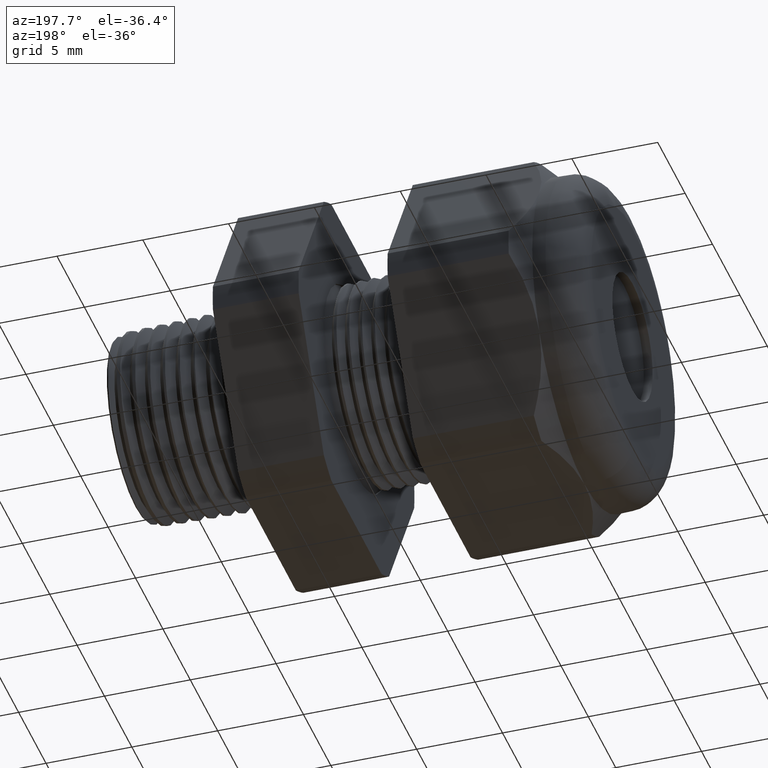
[diagram: clean part render]
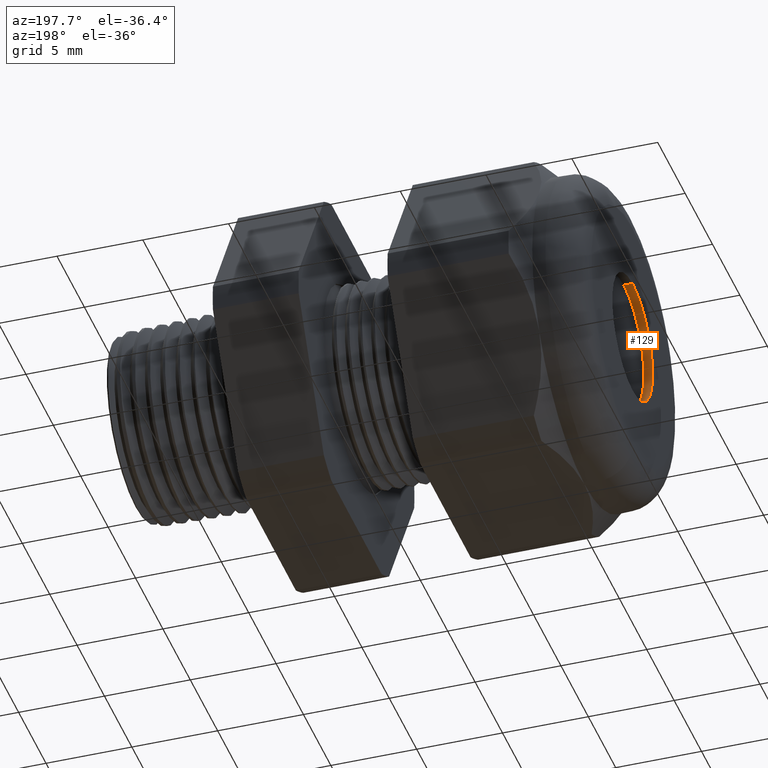
[diagram: same view with one face highlighted and labeled with its STEP entity id]
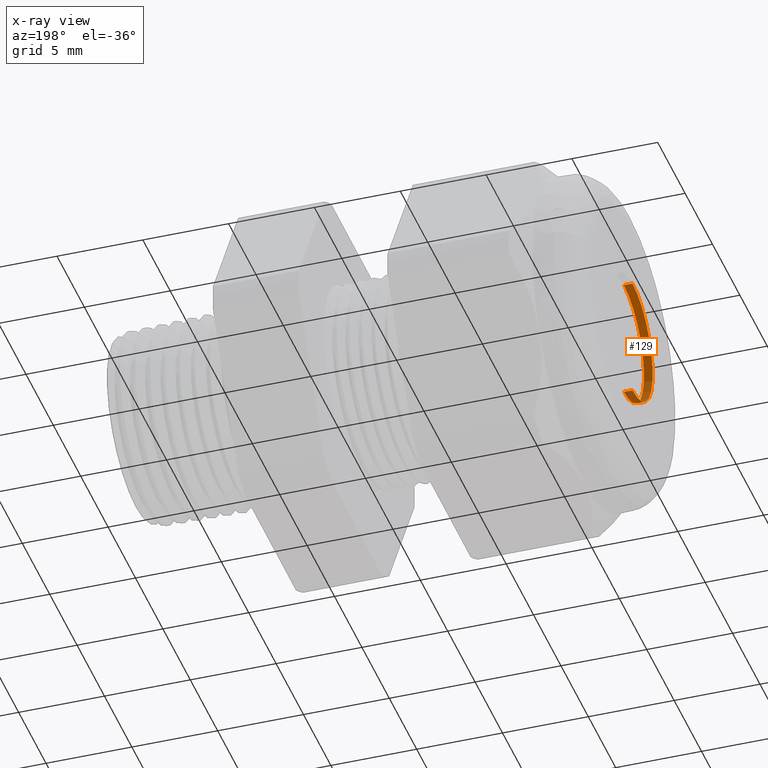
[diagram: x-ray of the same camera — body ghosted, the highlighted face saturated]
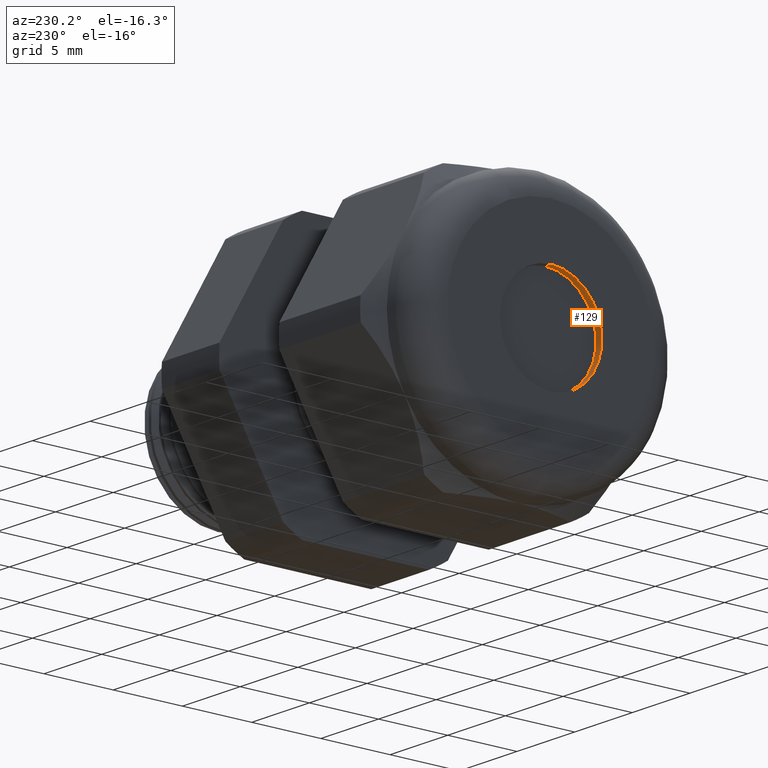
[diagram: same view with one face highlighted and labeled with its STEP entity id]
A machine part, auxiliary view. The second image highlights one B-rep face of the part: STEP entity #129.
The next image is the same camera in x-ray: the body ghosted, the highlighted face saturated — about 0% of this face is hidden behind the body in this view.
A second angle (auxiliary view) of the same face is appended — the face is thin or edge-on in the first view.
In plain terms, the highlighted cylindrical surface (partial cylindrical patch) has radius 3.683 mm, axis along (-1, 0, 0).
Its self-contained STEP definition (entity closure, byte-faithful):
#90 = VERTEX_POINT ( 'NONE', #1512 ) ;
#91 = EDGE_CURVE ( 'NONE', #99, #90, #1511, .T. ) ;
#92 = ORIENTED_EDGE ( 'NONE', *, *, #91, .F. ) ;
#93 = EDGE_CURVE ( 'NONE', #96, #90, #1570, .T. ) ;
#94 = ORIENTED_EDGE ( 'NONE', *, *, #93, .T. ) ;
#95 = EDGE_CURVE ( 'NONE', #133, #96, #1565, .T. ) ;
#96 = VERTEX_POINT ( 'NONE', #1561 ) ;
#99 = VERTEX_POINT ( 'NONE', #1555 ) ;
#100 = ORIENTED_EDGE ( 'NONE', *, *, #95, .T. ) ;
#129 = ADVANCED_FACE ( 'NONE', ( #1574 ), #1573, .F. ) ;
#130 = EDGE_LOOP ( 'NONE', ( #131, #100, #94, #92 ) ) ;
#131 = ORIENTED_EDGE ( 'NONE', *, *, #132, .F. ) ;
#132 = EDGE_CURVE ( 'NONE', #133, #99, #1632, .T. ) ;
#133 = VERTEX_POINT ( 'NONE', #1628 ) ;
#1509 = DIRECTION ( 'NONE',  ( -1.000000000000000000, 0.0000000000000000000, 0.0000000000000000000 ) ) ;
#1510 = CARTESIAN_POINT ( 'NONE',  ( -1.119999999999999900, 0.0000000000000000000, 0.1449999999999999900 ) ) ;
#1511 = LINE ( 'NONE', #1510, #1571 ) ;
#1512 = CARTESIAN_POINT ( 'NONE',  ( -1.139999999999999900, 0.0000000000000000000, 0.1449999999999999900 ) ) ;
#1555 = CARTESIAN_POINT ( 'NONE',  ( -1.119999999999999900, 0.0000000000000000000, 0.1449999999999999900 ) ) ;
#1561 = CARTESIAN_POINT ( 'NONE',  ( -1.139999999999999900, 1.775737858763661900E-017, -0.1449999999999999900 ) ) ;
#1562 = DIRECTION ( 'NONE',  ( -1.000000000000000000, 0.0000000000000000000, 0.0000000000000000000 ) ) ;
#1563 = VECTOR ( 'NONE', #1562, 39.37007874015748100 ) ;
#1564 = CARTESIAN_POINT ( 'NONE',  ( -1.119999999999999900, 1.775737858763661900E-017, -0.1449999999999999900 ) ) ;
#1565 = LINE ( 'NONE', #1564, #1563 ) ;
#1566 = DIRECTION ( 'NONE',  ( 0.0000000000000000000, 0.0000000000000000000, 1.000000000000000000 ) ) ;
#1567 = DIRECTION ( 'NONE',  ( -1.000000000000000000, 0.0000000000000000000, 0.0000000000000000000 ) ) ;
#1568 = CARTESIAN_POINT ( 'NONE',  ( -1.139999999999999900, 0.0000000000000000000, 0.0000000000000000000 ) ) ;
#1569 = AXIS2_PLACEMENT_3D ( 'NONE', #1568, #1567, #1566 ) ;
#1570 = CIRCLE ( 'NONE', #1569, 0.1449999999999999900 ) ;
#1571 = VECTOR ( 'NONE', #1509, 39.37007874015748100 ) ;
#1572 = CARTESIAN_POINT ( 'NONE',  ( -1.119999999999999900, 0.0000000000000000000, 0.0000000000000000000 ) ) ;
#1573 = CYLINDRICAL_SURFACE ( 'NONE', #1636, 0.1449999999999999900 ) ;
#1574 = FACE_OUTER_BOUND ( 'NONE', #130, .T. ) ;
#1628 = CARTESIAN_POINT ( 'NONE',  ( -1.119999999999999900, 1.775737858763661900E-017, -0.1449999999999999900 ) ) ;
#1629 = DIRECTION ( 'NONE',  ( 0.0000000000000000000, 0.0000000000000000000, 1.000000000000000000 ) ) ;
#1630 = DIRECTION ( 'NONE',  ( -1.000000000000000000, 0.0000000000000000000, 0.0000000000000000000 ) ) ;
#1631 = AXIS2_PLACEMENT_3D ( 'NONE', #1572, #1630, #1629 ) ;
#1632 = CIRCLE ( 'NONE', #1631, 0.1449999999999999900 ) ;
#1633 = DIRECTION ( 'NONE',  ( 0.0000000000000000000, 0.0000000000000000000, 1.000000000000000000 ) ) ;
#1634 = DIRECTION ( 'NONE',  ( -1.000000000000000000, 0.0000000000000000000, 0.0000000000000000000 ) ) ;
#1635 = CARTESIAN_POINT ( 'NONE',  ( -1.119999999999999900, 0.0000000000000000000, 0.0000000000000000000 ) ) ;
#1636 = AXIS2_PLACEMENT_3D ( 'NONE', #1635, #1634, #1633 ) ;